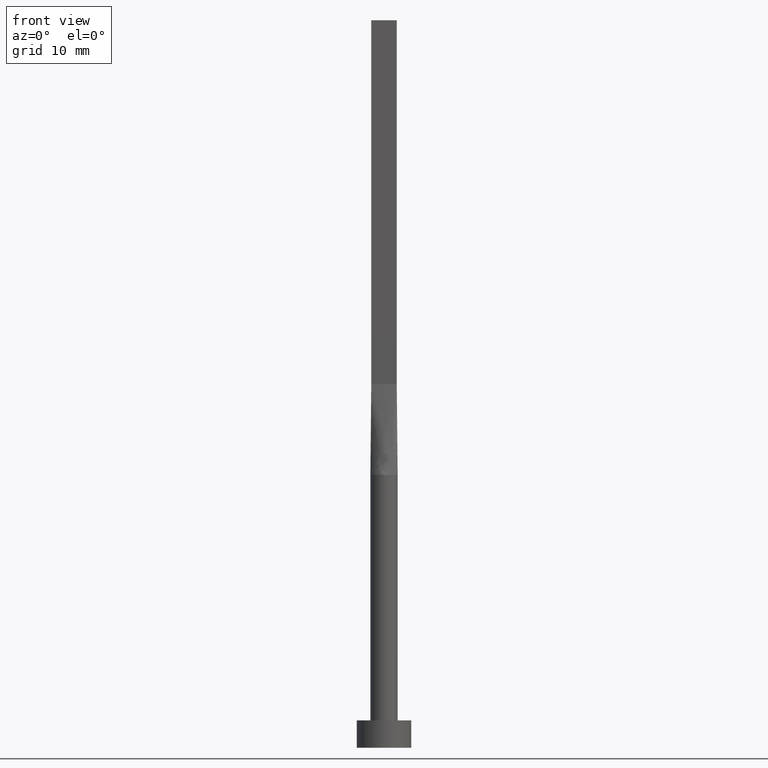
[diagram: clean part render]
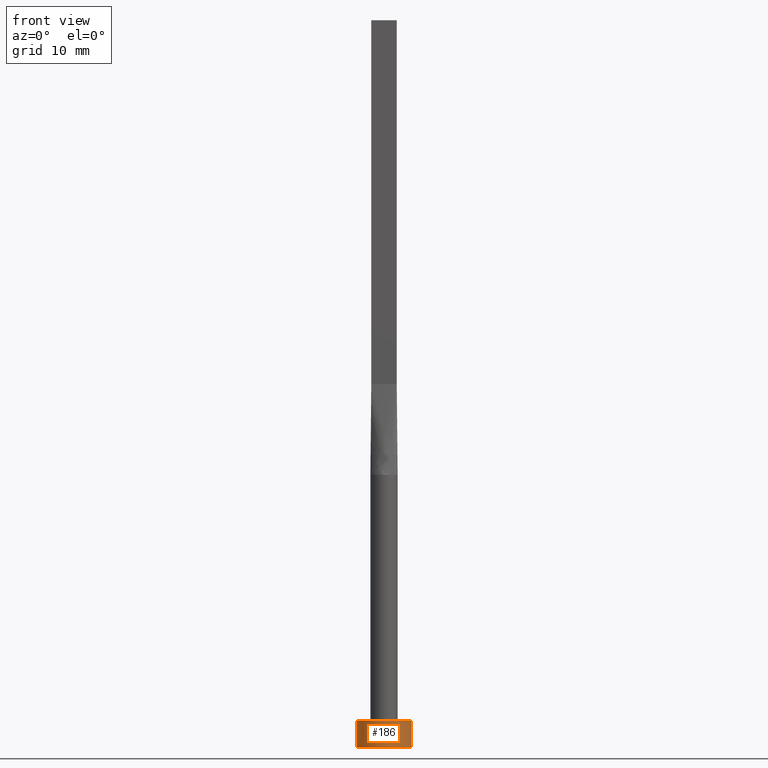
[diagram: same view with one face highlighted and labeled with its STEP entity id]
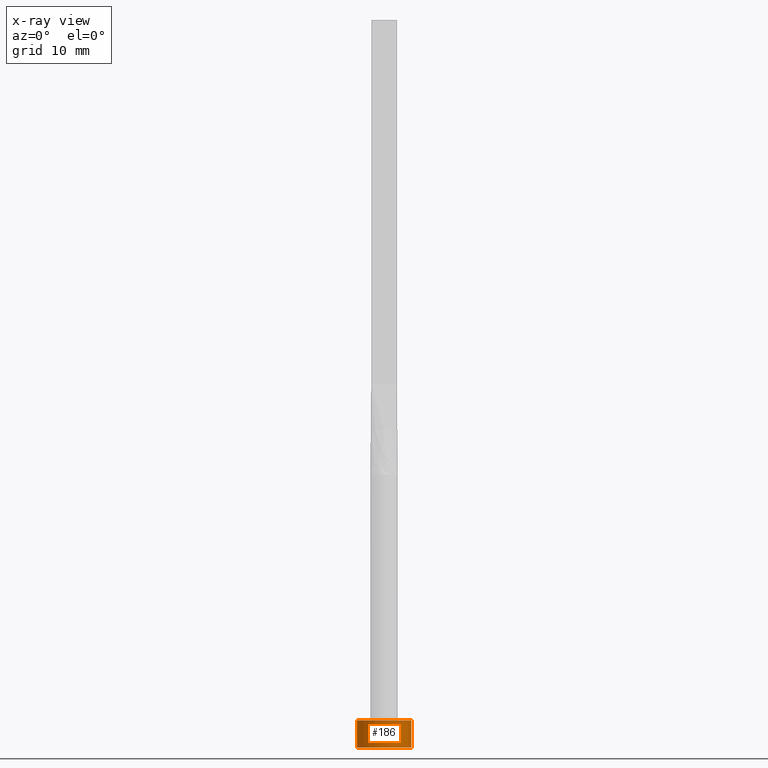
[diagram: x-ray of the same camera — body ghosted, the highlighted face saturated]
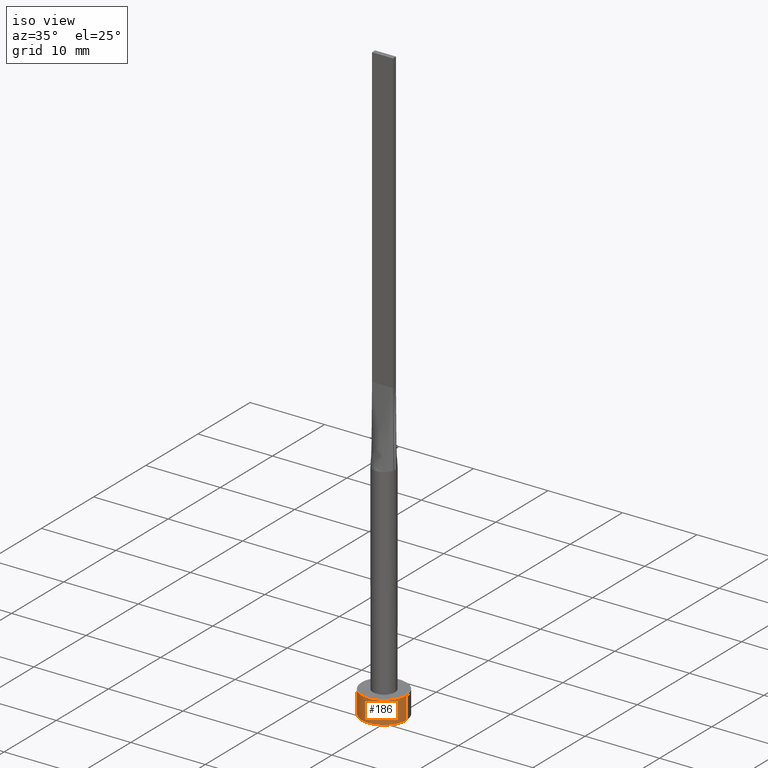
[diagram: same view with one face highlighted and labeled with its STEP entity id]
A machine part, front view. The second image highlights one B-rep face of the part: STEP entity #186.
The next image is the same camera in x-ray: the body ghosted, the highlighted face saturated — about 0% of this face is hidden behind the body in this view.
A second angle (iso view) of the same face is appended — the face is thin or edge-on in the first view.
In plain terms, the highlighted cylindrical surface (edge-blend (fillet) strip) has radius 3 mm, axis along (-0, -0, -1).
Its self-contained STEP definition (entity closure, byte-faithful):
#3 = LINE ( 'NONE', #541, #188 ) ;
#21 = DIRECTION ( 'NONE',  ( 0.000000000000000000, 0.000000000000000000, 1.000000000000000000 ) ) ;
#32 = AXIS2_PLACEMENT_3D ( 'NONE', #175, #485, #342 ) ;
#44 = CARTESIAN_POINT ( 'NONE',  ( 0.000000000000000000, 0.000000000000000000, 0.000000000000000000 ) ) ;
#84 = DIRECTION ( 'NONE',  ( 0.000000000000000000, 0.000000000000000000, 1.000000000000000000 ) ) ;
#121 = CIRCLE ( 'NONE', #440, 3.000000000000000444 ) ;
#136 = EDGE_CURVE ( 'NONE', #171, #174, #275, .T. ) ;
#137 = AXIS2_PLACEMENT_3D ( 'NONE', #443, #84, #482 ) ;
#166 = CARTESIAN_POINT ( 'NONE',  ( 3.000000000000000444, 3.673940397442060361E-16, 3.000000000000000000 ) ) ;
#171 = VERTEX_POINT ( 'NONE', #439 ) ;
#174 = VERTEX_POINT ( 'NONE', #166 ) ;
#175 = CARTESIAN_POINT ( 'NONE',  ( 0.000000000000000000, 0.000000000000000000, 3.000000000000000000 ) ) ;
#186 = ADVANCED_FACE ( 'NONE', ( #257 ), #307, .T. ) ;
#188 = VECTOR ( 'NONE', #418, 1000.000000000000000 ) ;
#217 = ORIENTED_EDGE ( 'NONE', *, *, #300, .F. ) ;
#228 = VERTEX_POINT ( 'NONE', #427 ) ;
#239 = ORIENTED_EDGE ( 'NONE', *, *, #556, .T. ) ;
#246 = DIRECTION ( 'NONE',  ( 1.000000000000000000, 0.000000000000000000, 0.000000000000000000 ) ) ;
#257 = FACE_OUTER_BOUND ( 'NONE', #570, .T. ) ;
#275 = CIRCLE ( 'NONE', #137, 3.000000000000000444 ) ;
#300 = EDGE_CURVE ( 'NONE', #174, #228, #415, .T. ) ;
#307 = CYLINDRICAL_SURFACE ( 'NONE', #32, 3.000000000000000444 ) ;
#337 = VECTOR ( 'NONE', #457, 1000.000000000000000 ) ;
#342 = DIRECTION ( 'NONE',  ( -1.000000000000000000, 0.000000000000000000, 0.000000000000000000 ) ) ;
#354 = EDGE_CURVE ( 'NONE', #171, #522, #3, .T. ) ;
#415 = LINE ( 'NONE', #503, #337 ) ;
#418 = DIRECTION ( 'NONE',  ( -0.000000000000000000, -0.000000000000000000, -1.000000000000000000 ) ) ;
#427 = CARTESIAN_POINT ( 'NONE',  ( 3.000000000000000444, 3.673940397442060361E-16, 0.000000000000000000 ) ) ;
#439 = CARTESIAN_POINT ( 'NONE',  ( -3.000000000000000444, 0.000000000000000000, 3.000000000000000000 ) ) ;
#440 = AXIS2_PLACEMENT_3D ( 'NONE', #44, #21, #246 ) ;
#443 = CARTESIAN_POINT ( 'NONE',  ( 0.000000000000000000, 0.000000000000000000, 3.000000000000000000 ) ) ;
#445 = ORIENTED_EDGE ( 'NONE', *, *, #354, .T. ) ;
#448 = ORIENTED_EDGE ( 'NONE', *, *, #136, .F. ) ;
#457 = DIRECTION ( 'NONE',  ( -0.000000000000000000, -0.000000000000000000, -1.000000000000000000 ) ) ;
#482 = DIRECTION ( 'NONE',  ( 1.000000000000000000, 0.000000000000000000, 0.000000000000000000 ) ) ;
#485 = DIRECTION ( 'NONE',  ( -0.000000000000000000, -0.000000000000000000, -1.000000000000000000 ) ) ;
#503 = CARTESIAN_POINT ( 'NONE',  ( 3.000000000000000444, 3.673940397442060361E-16, 3.000000000000000000 ) ) ;
#522 = VERTEX_POINT ( 'NONE', #543 ) ;
#541 = CARTESIAN_POINT ( 'NONE',  ( -3.000000000000000444, 0.000000000000000000, 3.000000000000000000 ) ) ;
#543 = CARTESIAN_POINT ( 'NONE',  ( -3.000000000000000444, 0.000000000000000000, 0.000000000000000000 ) ) ;
#556 = EDGE_CURVE ( 'NONE', #522, #228, #121, .T. ) ;
#570 = EDGE_LOOP ( 'NONE', ( #217, #448, #445, #239 ) ) ;